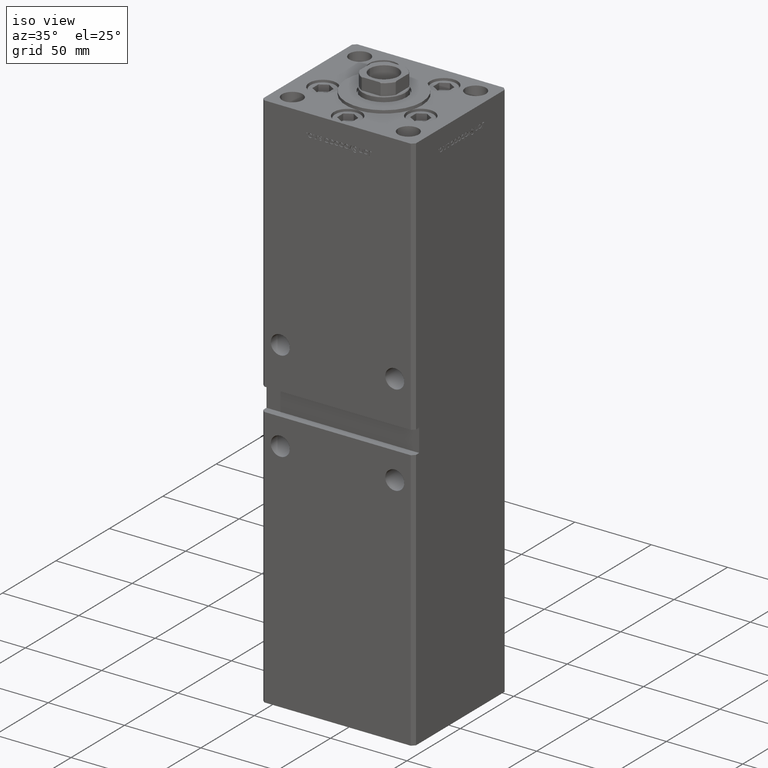
[diagram: clean part render]
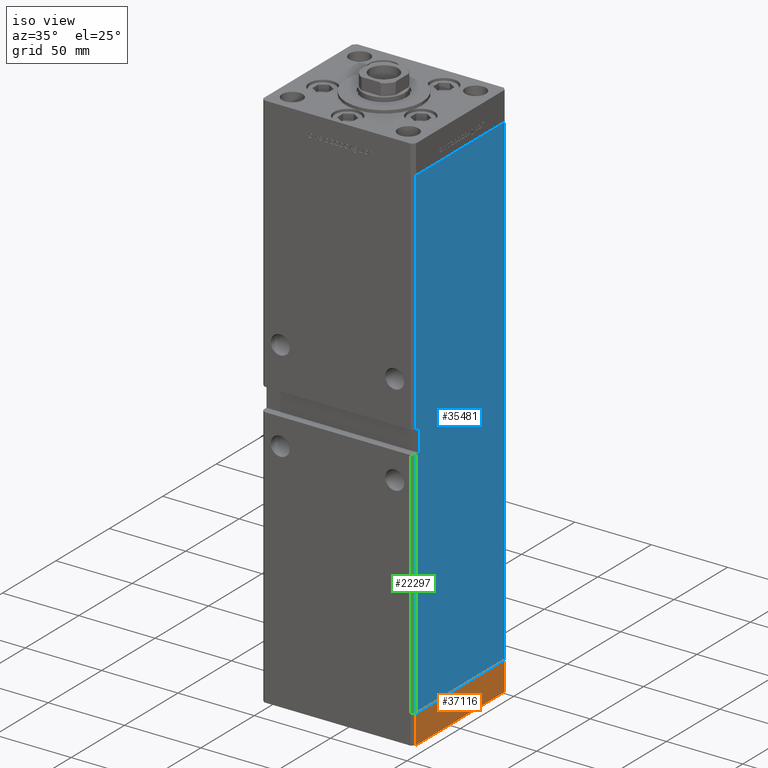
[diagram: same view with three faces highlighted in distinct colors, each labeled with its STEP entity id]
A machine part, iso view with three faces highlighted in distinct colors.
Their STEP definitions:

[orange] entity #37116 — the highlighted planar face has unit normal (1, 0, 0).
#1598 = LINE ( 'NONE', #18282, #47492 ) ;
#1736 = ORIENTED_EDGE ( 'NONE', *, *, #15355, .T. ) ;
#2169 = DIRECTION ( 'NONE',  ( 0.000000000000000000, 0.000000000000000000, 1.000000000000000000 ) ) ;
#3254 = VERTEX_POINT ( 'NONE', #48107 ) ;
#5609 = DIRECTION ( 'NONE',  ( 0.000000000000000000, 0.000000000000000000, 1.000000000000000000 ) ) ;
#8284 = ORIENTED_EDGE ( 'NONE', *, *, #19858, .T. ) ;
#9677 = CARTESIAN_POINT ( 'NONE',  ( -50.00000000000000711, 41.49999999999995026, -19.00000000000000000 ) ) ;
#11299 = ORIENTED_EDGE ( 'NONE', *, *, #51494, .F. ) ;
#12995 = VERTEX_POINT ( 'NONE', #41236 ) ;
#14019 = DIRECTION ( 'NONE',  ( 8.360113137237628665E-17, -1.000000000000000000, 0.000000000000000000 ) ) ;
#15355 = EDGE_CURVE ( 'NONE', #49764, #21296, #18277, .T. ) ;
#18277 = LINE ( 'NONE', #9677, #20554 ) ;
#18282 = CARTESIAN_POINT ( 'NONE',  ( -50.00000000000000711, 41.49999999999995026, 0.000000000000000000 ) ) ;
#18516 = AXIS2_PLACEMENT_3D ( 'NONE', #34432, #50814, #14019 ) ;
#19858 = EDGE_CURVE ( 'NONE', #21296, #12995, #42752, .T. ) ;
#20554 = VECTOR ( 'NONE', #22035, 1000.000000000000000 ) ;
#21296 = VERTEX_POINT ( 'NONE', #51489 ) ;
#22035 = DIRECTION ( 'NONE',  ( 8.360113137237628665E-17, -1.000000000000000000, 0.000000000000000000 ) ) ;
#34432 = CARTESIAN_POINT ( 'NONE',  ( -50.00000000000000711, 41.49999999999995026, -19.00000000000000000 ) ) ;
#36443 = EDGE_CURVE ( 'NONE', #49764, #3254, #51014, .T. ) ;
#37116 = ADVANCED_FACE ( 'NONE', ( #42755 ), #39274, .T. ) ;
#38215 = CARTESIAN_POINT ( 'NONE',  ( -50.00000000000000000, -41.50000000000000000, -19.00000000000000000 ) ) ;
#39274 = PLANE ( 'NONE',  #18516 ) ;
#39967 = VECTOR ( 'NONE', #5609, 1000.000000000000000 ) ;
#40211 = CARTESIAN_POINT ( 'NONE',  ( -50.00000000000000711, 41.49999999999995026, -19.00000000000000000 ) ) ;
#41168 = EDGE_LOOP ( 'NONE', ( #11299, #42399, #1736, #8284 ) ) ;
#41236 = CARTESIAN_POINT ( 'NONE',  ( -50.00000000000000000, -41.50000000000000000, 0.000000000000000000 ) ) ;
#42399 = ORIENTED_EDGE ( 'NONE', *, *, #36443, .F. ) ;
#42752 = LINE ( 'NONE', #38215, #44671 ) ;
#42755 = FACE_OUTER_BOUND ( 'NONE', #41168, .T. ) ;
#43527 = DIRECTION ( 'NONE',  ( 8.360113137237628665E-17, -1.000000000000000000, 0.000000000000000000 ) ) ;
#44671 = VECTOR ( 'NONE', #2169, 1000.000000000000000 ) ;
#47492 = VECTOR ( 'NONE', #43527, 1000.000000000000000 ) ;
#48107 = CARTESIAN_POINT ( 'NONE',  ( -50.00000000000000711, 41.49999999999995026, 0.000000000000000000 ) ) ;
#49764 = VERTEX_POINT ( 'NONE', #40211 ) ;
#50467 = CARTESIAN_POINT ( 'NONE',  ( -50.00000000000000711, 41.49999999999995026, -19.00000000000000000 ) ) ;
#50814 = DIRECTION ( 'NONE',  ( -1.000000000000000000, -8.360113137237628665E-17, 0.000000000000000000 ) ) ;
#51014 = LINE ( 'NONE', #50467, #39967 ) ;
#51489 = CARTESIAN_POINT ( 'NONE',  ( -50.00000000000000000, -41.50000000000000000, -19.00000000000000000 ) ) ;
#51494 = EDGE_CURVE ( 'NONE', #3254, #12995, #1598, .T. ) ;

[blue] entity #35481 — the highlighted planar face has unit normal (1, -0, 0).
#425 = VECTOR ( 'NONE', #24798, 1000.000000000000000 ) ;
#1324 = DIRECTION ( 'NONE',  ( -0.000000000000000000, -0.000000000000000000, -1.000000000000000000 ) ) ;
#2279 = DIRECTION ( 'NONE',  ( -0.000000000000000000, -1.000000000000000000, -0.000000000000000000 ) ) ;
#2310 = EDGE_CURVE ( 'NONE', #46585, #44328, #15071, .T. ) ;
#2433 = CARTESIAN_POINT ( 'NONE',  ( 50.00000000000001421, 41.49999999999999289, 318.5000000000000000 ) ) ;
#2871 = VERTEX_POINT ( 'NONE', #12008 ) ;
#3926 = VERTEX_POINT ( 'NONE', #14292 ) ;
#5954 = DIRECTION ( 'NONE',  ( 1.000000000000000000, -3.344045254895050480E-16, 0.000000000000000000 ) ) ;
#6252 = ORIENTED_EDGE ( 'NONE', *, *, #43523, .F. ) ;
#9139 = CARTESIAN_POINT ( 'NONE',  ( 50.00000000000001421, 41.49999999999999289, 318.5000000000000000 ) ) ;
#9720 = VECTOR ( 'NONE', #2279, 1000.000000000000000 ) ;
#10933 = DIRECTION ( 'NONE',  ( -0.000000000000000000, -0.000000000000000000, 1.000000000000000000 ) ) ;
#10977 = CARTESIAN_POINT ( 'NONE',  ( 50.00000000000000000, -38.50000000000000000, 168.0000000000000000 ) ) ;
#11641 = LINE ( 'NONE', #28017, #15489 ) ;
#12008 = CARTESIAN_POINT ( 'NONE',  ( 50.00000000000001421, 41.49999999999999289, 0.000000000000000000 ) ) ;
#14292 = CARTESIAN_POINT ( 'NONE',  ( 49.99999999999998579, -41.49999999999999289, 318.5000000000000000 ) ) ;
#14421 = LINE ( 'NONE', #18458, #15625 ) ;
#15071 = LINE ( 'NONE', #23380, #31038 ) ;
#15489 = VECTOR ( 'NONE', #44403, 1000.000000000000000 ) ;
#15625 = VECTOR ( 'NONE', #10933, 1000.000000000000000 ) ;
#15863 = ORIENTED_EDGE ( 'NONE', *, *, #27175, .F. ) ;
#15995 = EDGE_CURVE ( 'NONE', #3926, #48764, #44130, .T. ) ;
#16803 = CARTESIAN_POINT ( 'NONE',  ( 50.00000000000000000, -41.49999999999999289, 153.0000000000000000 ) ) ;
#17337 = EDGE_CURVE ( 'NONE', #33553, #3926, #11641, .T. ) ;
#18458 = CARTESIAN_POINT ( 'NONE',  ( 50.00000000000000000, -38.50000000000000000, 168.0000000000000000 ) ) ;
#18682 = ORIENTED_EDGE ( 'NONE', *, *, #2310, .T. ) ;
#19217 = ORIENTED_EDGE ( 'NONE', *, *, #36206, .F. ) ;
#19230 = CARTESIAN_POINT ( 'NONE',  ( 50.00000000000000000, -38.50000000000000000, 168.0000000000000000 ) ) ;
#19397 = DIRECTION ( 'NONE',  ( 3.344045254895050480E-16, 1.000000000000000000, 0.000000000000000000 ) ) ;
#19889 = CARTESIAN_POINT ( 'NONE',  ( 50.00000000000000000, -41.49999999999999289, 168.0000000000000000 ) ) ;
#22421 = EDGE_LOOP ( 'NONE', ( #26667, #18682, #19217, #30244, #51738, #46825, #15863, #6252 ) ) ;
#23380 = CARTESIAN_POINT ( 'NONE',  ( 49.99999999999998579, -41.49999999999999289, 318.5000000000000000 ) ) ;
#24798 = DIRECTION ( 'NONE',  ( -3.344045254895050973E-16, -1.000000000000000000, 0.000000000000000000 ) ) ;
#26378 = PLANE ( 'NONE',  #38196 ) ;
#26667 = ORIENTED_EDGE ( 'NONE', *, *, #46420, .T. ) ;
#27175 = EDGE_CURVE ( 'NONE', #36673, #48764, #51194, .T. ) ;
#27905 = VECTOR ( 'NONE', #1324, 1000.000000000000000 ) ;
#28017 = CARTESIAN_POINT ( 'NONE',  ( 50.00000000000001421, 41.49999999999999289, 318.5000000000000000 ) ) ;
#28033 = CARTESIAN_POINT ( 'NONE',  ( 50.00000000000001421, 41.49999999999999289, 0.000000000000000000 ) ) ;
#30244 = ORIENTED_EDGE ( 'NONE', *, *, #35752, .F. ) ;
#30923 = DIRECTION ( 'NONE',  ( -0.000000000000000000, -0.000000000000000000, -1.000000000000000000 ) ) ;
#31038 = VECTOR ( 'NONE', #30923, 1000.000000000000000 ) ;
#32047 = DIRECTION ( 'NONE',  ( -0.000000000000000000, -0.000000000000000000, -1.000000000000000000 ) ) ;
#32121 = DIRECTION ( 'NONE',  ( -0.000000000000000000, -1.000000000000000000, -0.000000000000000000 ) ) ;
#32377 = LINE ( 'NONE', #44729, #52473 ) ;
#33553 = VERTEX_POINT ( 'NONE', #45396 ) ;
#35383 = CARTESIAN_POINT ( 'NONE',  ( 49.99999999999998579, -38.49999999999999289, 153.0000000000000000 ) ) ;
#35481 = ADVANCED_FACE ( 'NONE', ( #43306 ), #26378, .T. ) ;
#35752 = EDGE_CURVE ( 'NONE', #33553, #2871, #37628, .T. ) ;
#36206 = EDGE_CURVE ( 'NONE', #2871, #44328, #37442, .T. ) ;
#36673 = VERTEX_POINT ( 'NONE', #10977 ) ;
#37442 = LINE ( 'NONE', #28033, #425 ) ;
#37628 = LINE ( 'NONE', #9139, #27905 ) ;
#38196 = AXIS2_PLACEMENT_3D ( 'NONE', #2433, #5954, #19397 ) ;
#43306 = FACE_OUTER_BOUND ( 'NONE', #22421, .T. ) ;
#43523 = EDGE_CURVE ( 'NONE', #52361, #36673, #14421, .T. ) ;
#44130 = LINE ( 'NONE', #52448, #52342 ) ;
#44328 = VERTEX_POINT ( 'NONE', #46957 ) ;
#44403 = DIRECTION ( 'NONE',  ( -3.344045254895050973E-16, -1.000000000000000000, 0.000000000000000000 ) ) ;
#44729 = CARTESIAN_POINT ( 'NONE',  ( 50.00000000000000000, -38.50000000000000000, 153.0000000000000000 ) ) ;
#45396 = CARTESIAN_POINT ( 'NONE',  ( 50.00000000000001421, 41.49999999999999289, 318.5000000000000000 ) ) ;
#46420 = EDGE_CURVE ( 'NONE', #52361, #46585, #32377, .T. ) ;
#46585 = VERTEX_POINT ( 'NONE', #16803 ) ;
#46825 = ORIENTED_EDGE ( 'NONE', *, *, #15995, .T. ) ;
#46957 = CARTESIAN_POINT ( 'NONE',  ( 49.99999999999998579, -41.49999999999999289, 0.000000000000000000 ) ) ;
#48764 = VERTEX_POINT ( 'NONE', #19889 ) ;
#51194 = LINE ( 'NONE', #19230, #9720 ) ;
#51738 = ORIENTED_EDGE ( 'NONE', *, *, #17337, .T. ) ;
#52342 = VECTOR ( 'NONE', #32047, 1000.000000000000000 ) ;
#52361 = VERTEX_POINT ( 'NONE', #35383 ) ;
#52448 = CARTESIAN_POINT ( 'NONE',  ( 49.99999999999998579, -41.49999999999999289, 318.5000000000000000 ) ) ;
#52473 = VECTOR ( 'NONE', #32121, 1000.000000000000000 ) ;

[green] entity #22297 — the highlighted planar face has unit normal (0.7071, -0.7071, 0).
#2310 = EDGE_CURVE ( 'NONE', #46585, #44328, #15071, .T. ) ;
#3643 = CARTESIAN_POINT ( 'NONE',  ( 49.99999999999998579, -41.49999999999999289, 0.000000000000000000 ) ) ;
#3920 = DIRECTION ( 'NONE',  ( -0.7071067811865474617, -0.7071067811865474617, 0.000000000000000000 ) ) ;
#5158 = CARTESIAN_POINT ( 'NONE',  ( 49.99999999999998579, -41.49999999999999289, 153.0000000000000000 ) ) ;
#8265 = ORIENTED_EDGE ( 'NONE', *, *, #18658, .T. ) ;
#9723 = LINE ( 'NONE', #5158, #31905 ) ;
#11227 = EDGE_LOOP ( 'NONE', ( #12879, #8265, #34076, #23898 ) ) ;
#11368 = PLANE ( 'NONE',  #18166 ) ;
#11631 = DIRECTION ( 'NONE',  ( 0.7071067811865474617, 0.7071067811865474617, 0.000000000000000000 ) ) ;
#12313 = DIRECTION ( 'NONE',  ( -0.000000000000000000, -0.000000000000000000, -1.000000000000000000 ) ) ;
#12879 = ORIENTED_EDGE ( 'NONE', *, *, #21809, .F. ) ;
#13502 = DIRECTION ( 'NONE',  ( 0.7071067811865474617, 0.7071067811865474617, 0.000000000000000000 ) ) ;
#15071 = LINE ( 'NONE', #23380, #31038 ) ;
#16018 = VERTEX_POINT ( 'NONE', #24762 ) ;
#16803 = CARTESIAN_POINT ( 'NONE',  ( 50.00000000000000000, -41.49999999999999289, 153.0000000000000000 ) ) ;
#16877 = CARTESIAN_POINT ( 'NONE',  ( 47.99999999999995737, -43.50000000000000000, 153.0000000000000000 ) ) ;
#18166 = AXIS2_PLACEMENT_3D ( 'NONE', #23448, #48431, #11631 ) ;
#18658 = EDGE_CURVE ( 'NONE', #37642, #16018, #28424, .T. ) ;
#21809 = EDGE_CURVE ( 'NONE', #37642, #46585, #9723, .T. ) ;
#22297 = ADVANCED_FACE ( 'NONE', ( #39321 ), #11368, .T. ) ;
#23380 = CARTESIAN_POINT ( 'NONE',  ( 49.99999999999998579, -41.49999999999999289, 318.5000000000000000 ) ) ;
#23448 = CARTESIAN_POINT ( 'NONE',  ( 49.99999999999998579, -41.49999999999999289, 318.5000000000000000 ) ) ;
#23898 = ORIENTED_EDGE ( 'NONE', *, *, #2310, .F. ) ;
#24762 = CARTESIAN_POINT ( 'NONE',  ( 47.99999999999998579, -43.50000000000000000, 0.000000000000000000 ) ) ;
#24917 = VECTOR ( 'NONE', #12313, 1000.000000000000000 ) ;
#28424 = LINE ( 'NONE', #32457, #24917 ) ;
#28657 = LINE ( 'NONE', #3643, #32022 ) ;
#29763 = EDGE_CURVE ( 'NONE', #44328, #16018, #28657, .T. ) ;
#30923 = DIRECTION ( 'NONE',  ( -0.000000000000000000, -0.000000000000000000, -1.000000000000000000 ) ) ;
#31038 = VECTOR ( 'NONE', #30923, 1000.000000000000000 ) ;
#31905 = VECTOR ( 'NONE', #13502, 1000.000000000000114 ) ;
#32022 = VECTOR ( 'NONE', #3920, 1000.000000000000114 ) ;
#32457 = CARTESIAN_POINT ( 'NONE',  ( 47.99999999999998579, -43.50000000000000000, 318.5000000000000000 ) ) ;
#34076 = ORIENTED_EDGE ( 'NONE', *, *, #29763, .F. ) ;
#37642 = VERTEX_POINT ( 'NONE', #16877 ) ;
#39321 = FACE_OUTER_BOUND ( 'NONE', #11227, .T. ) ;
#44328 = VERTEX_POINT ( 'NONE', #46957 ) ;
#46585 = VERTEX_POINT ( 'NONE', #16803 ) ;
#46957 = CARTESIAN_POINT ( 'NONE',  ( 49.99999999999998579, -41.49999999999999289, 0.000000000000000000 ) ) ;
#48431 = DIRECTION ( 'NONE',  ( 0.7071067811865475727, -0.7071067811865475727, 0.000000000000000000 ) ) ;